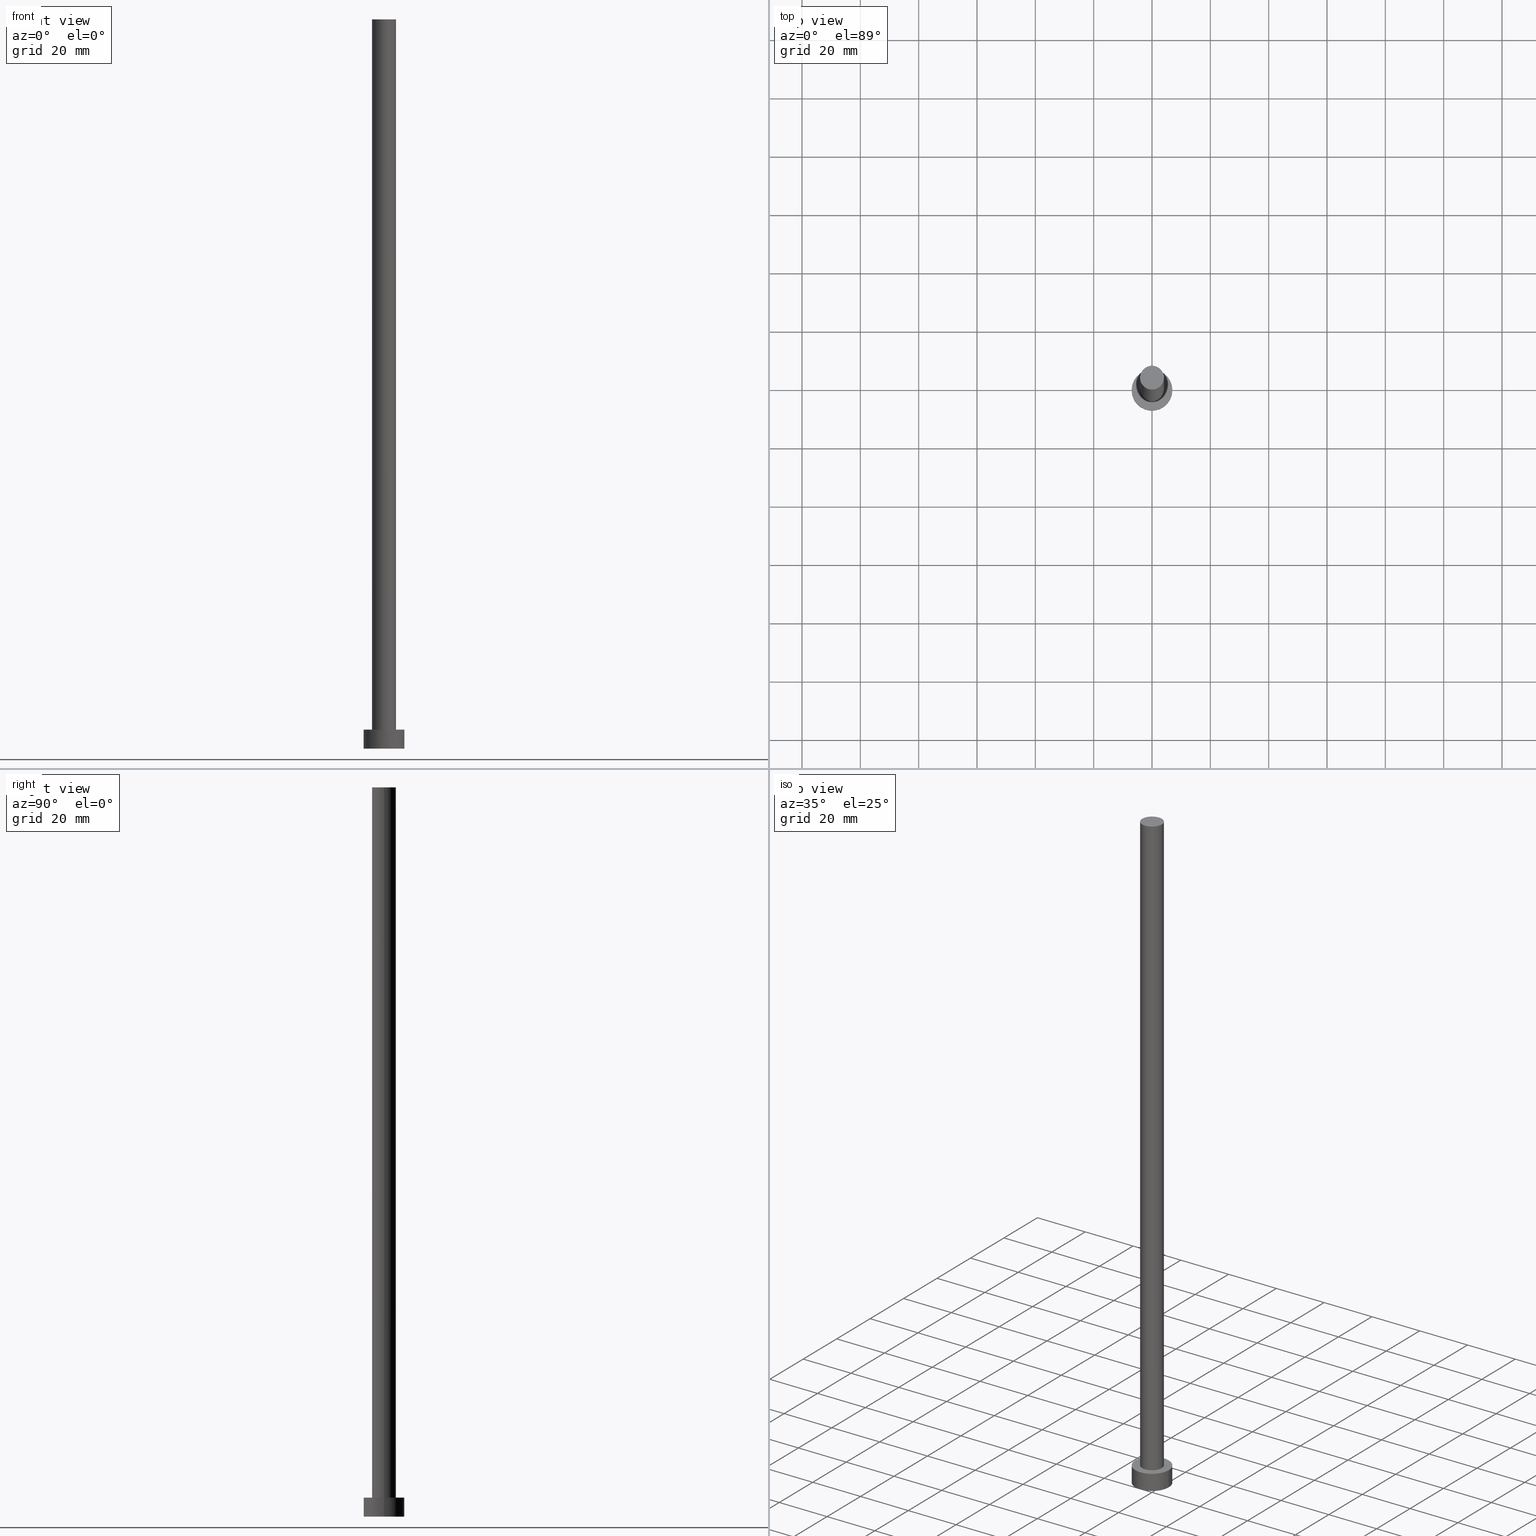
[diagram: canonical four-view strip — front | top / right | iso, engineering-drawing reading convention]
A machine part, canonical four-view strip (front | top / right | iso — engineering-drawing reading convention). The complete STEP part file that produces these views, byte-faithful:
ISO-10303-21;
HEADER;
FILE_DESCRIPTION (( 'STEP AP203' ),
    '1' );
FILE_NAME ('b596.STEP',
    '2023-02-13T14:16:57',
    ( '' ),
    ( '' ),
    'SwSTEP 2.0',
    'SolidWorks 2019',
    '' );
FILE_SCHEMA (( 'CONFIG_CONTROL_DESIGN' ));
ENDSEC;

DATA;
#1 = APPLICATION_PROTOCOL_DEFINITION ( 'international standard', 'config_control_design', 1994, #232 ) ;
#2 = COORDINATED_UNIVERSAL_TIME_OFFSET ( 1, 0, .AHEAD. ) ;
#3 = ORIENTED_EDGE ( 'NONE', *, *, #163, .F. ) ;
#4 = VERTEX_POINT ( 'NONE', #69 ) ;
#5 = VERTEX_POINT ( 'NONE', #145 ) ;
#6 = ORIENTED_EDGE ( 'NONE', *, *, #226, .F. ) ;
#7 = EDGE_CURVE ( 'NONE', #5, #182, #47, .T. ) ;
#8 = ORIENTED_EDGE ( 'NONE', *, *, #60, .T. ) ;
#9 = AXIS2_PLACEMENT_3D ( 'NONE', #213, #210, #98 ) ;
#10 = LOCAL_TIME ( 15, 16, 57.00000000000000000, #83 ) ;
#11 = CARTESIAN_POINT ( 'NONE',  ( 0.000000000000000000, 0.000000000000000000, 250.0000000000000000 ) ) ;
#12 = CYLINDRICAL_SURFACE ( 'NONE', #19, 7.000000000000000000 ) ;
#13 = CC_DESIGN_DATE_AND_TIME_ASSIGNMENT ( #110, #146, ( #198 ) ) ;
#14 = FACE_OUTER_BOUND ( 'NONE', #205, .T. ) ;
#15 = ADVANCED_FACE ( 'NONE', ( #117 ), #158, .T. ) ;
#16 = LINE ( 'NONE', #52, #71 ) ;
#17 = FACE_BOUND ( 'NONE', #126, .T. ) ;
#18 = MECHANICAL_CONTEXT ( 'NONE', #232, 'mechanical' ) ;
#19 = AXIS2_PLACEMENT_3D ( 'NONE', #228, #129, #157 ) ;
#20 = DIRECTION ( 'NONE',  ( 0.000000000000000000, 0.000000000000000000, 1.000000000000000000 ) ) ;
#21 =( GEOMETRIC_REPRESENTATION_CONTEXT ( 3 ) GLOBAL_UNCERTAINTY_ASSIGNED_CONTEXT ( ( #133 ) ) GLOBAL_UNIT_ASSIGNED_CONTEXT ( ( #44, #161, #22 ) ) REPRESENTATION_CONTEXT ( 'NONE', 'WORKASPACE' ) );
#22 =( NAMED_UNIT ( * ) SI_UNIT ( $, .STERADIAN. ) SOLID_ANGLE_UNIT ( ) );
#23 = PERSON_AND_ORGANIZATION_ROLE ( 'design_owner' ) ;
#24 = APPROVAL_STATUS ( 'not_yet_approved' ) ;
#25 = ADVANCED_FACE ( 'NONE', ( #17, #14 ), #36, .T. ) ;
#26 = PERSON_AND_ORGANIZATION ( #43, #66 ) ;
#27 = ORIENTED_EDGE ( 'NONE', *, *, #208, .T. ) ;
#28 = VERTEX_POINT ( 'NONE', #99 ) ;
#29 = EDGE_LOOP ( 'NONE', ( #242, #91, #147, #151 ) ) ;
#30 = APPROVAL_PERSON_ORGANIZATION ( #26, #96, #144 ) ;
#31 = CC_DESIGN_PERSON_AND_ORGANIZATION_ASSIGNMENT ( #209, #203, ( #198 ) ) ;
#32 = DIRECTION ( 'NONE',  ( 1.000000000000000000, 0.000000000000000000, -0.000000000000000000 ) ) ;
#33 = FACE_OUTER_BOUND ( 'NONE', #29, .T. ) ;
#34 = ADVANCED_BREP_SHAPE_REPRESENTATION ( 'b596', ( #142, #55 ), #21 ) ;
#35 = DIRECTION ( 'NONE',  ( 1.000000000000000000, 0.000000000000000000, 0.000000000000000000 ) ) ;
#36 = PLANE ( 'NONE',  #49 ) ;
#37 = AXIS2_PLACEMENT_3D ( 'NONE', #57, #212, #249 ) ;
#38 = CC_DESIGN_APPROVAL ( #202, ( #75 ) ) ;
#39 = DIRECTION ( 'NONE',  ( -0.000000000000000000, -0.000000000000000000, -1.000000000000000000 ) ) ;
#40 = ADVANCED_FACE ( 'NONE', ( #118 ), #58, .T. ) ;
#41 = CARTESIAN_POINT ( 'NONE',  ( 0.000000000000000000, 0.000000000000000000, 0.000000000000000000 ) ) ;
#42 = PERSON_AND_ORGANIZATION_ROLE ( 'design_supplier' ) ;
#43 = PERSON ( 'NEUR�EN�', 'NEUR�EN�', 'NEUR�EN�', ('NEUR�EN�'), ('NEUR�EN�'), ('NEUR�EN�') ) ;
#44 =( LENGTH_UNIT ( ) NAMED_UNIT ( * ) SI_UNIT ( .MILLI., .METRE. ) );
#45 = EDGE_CURVE ( 'NONE', #239, #127, #193, .T. ) ;
#46 = PERSON_AND_ORGANIZATION ( #43, #66 ) ;
#47 = CIRCLE ( 'NONE', #148, 7.000000000000000000 ) ;
#48 = ORIENTED_EDGE ( 'NONE', *, *, #65, .F. ) ;
#49 = AXIS2_PLACEMENT_3D ( 'NONE', #77, #244, #32 ) ;
#50 = APPROVAL_PERSON_ORGANIZATION ( #46, #202, #67 ) ;
#51 = PRODUCT_DEFINITION_SHAPE ( 'NONE', 'NONE',  #128 ) ;
#52 = CARTESIAN_POINT ( 'NONE',  ( 4.099999999999999645, 5.021051876504147385E-16, 250.0000000000000000 ) ) ;
#53 = APPROVAL ( #251, 'NEUR�EN�' ) ;
#54 = DIRECTION ( 'NONE',  ( 1.000000000000000000, 0.000000000000000000, 0.000000000000000000 ) ) ;
#55 = AXIS2_PLACEMENT_3D ( 'NONE', #236, #80, #199 ) ;
#56 = EDGE_CURVE ( 'NONE', #182, #5, #250, .T. ) ;
#57 = CARTESIAN_POINT ( 'NONE',  ( 0.000000000000000000, 0.000000000000000000, 0.000000000000000000 ) ) ;
#58 = PLANE ( 'NONE',  #113 ) ;
#59 = DIRECTION ( 'NONE',  ( -1.000000000000000000, 0.000000000000000000, 0.000000000000000000 ) ) ;
#60 = EDGE_CURVE ( 'NONE', #222, #28, #177, .T. ) ;
#61 = DIRECTION ( 'NONE',  ( 0.000000000000000000, 0.000000000000000000, 1.000000000000000000 ) ) ;
#62 = PERSON_AND_ORGANIZATION ( #43, #66 ) ;
#63 = PRODUCT_RELATED_PRODUCT_CATEGORY ( 'detail', '', ( #165 ) ) ;
#64 = DATE_AND_TIME ( #103, #185 ) ;
#65 = EDGE_CURVE ( 'NONE', #182, #127, #134, .T. ) ;
#66 = ORGANIZATION ( 'NEUR�EN�', 'NEUR�EN�', '' ) ;
#67 = APPROVAL_ROLE ( '' ) ;
#68 = COORDINATED_UNIVERSAL_TIME_OFFSET ( 1, 0, .AHEAD. ) ;
#69 = CARTESIAN_POINT ( 'NONE',  ( -4.099999999999999645, 0.000000000000000000, 6.500000000000000000 ) ) ;
#70 = ORIENTED_EDGE ( 'NONE', *, *, #56, .F. ) ;
#71 = VECTOR ( 'NONE', #152, 1000.000000000000000 ) ;
#72 = EDGE_LOOP ( 'NONE', ( #187, #109, #27, #3 ) ) ;
#73 = CARTESIAN_POINT ( 'NONE',  ( 0.000000000000000000, 0.000000000000000000, 6.500000000000000000 ) ) ;
#74 = DIRECTION ( 'NONE',  ( 0.000000000000000000, 0.000000000000000000, 1.000000000000000000 ) ) ;
#75 = PRODUCT_DEFINITION_FORMATION_WITH_SPECIFIED_SOURCE ( 'LIBOVOLN�', '', #165, .NOT_KNOWN. ) ;
#76 = PLANE ( 'NONE',  #9 ) ;
#77 = CARTESIAN_POINT ( 'NONE',  ( 0.000000000000000000, 0.000000000000000000, 6.500000000000000000 ) ) ;
#78 = DIRECTION ( 'NONE',  ( -0.000000000000000000, -0.000000000000000000, -1.000000000000000000 ) ) ;
#79 = DATE_AND_TIME ( #180, #10 ) ;
#80 = DIRECTION ( 'NONE',  ( 0.000000000000000000, 0.000000000000000000, 1.000000000000000000 ) ) ;
#81 = AXIS2_PLACEMENT_3D ( 'NONE', #119, #94, #172 ) ;
#82 = DIRECTION ( 'NONE',  ( 1.000000000000000000, 0.000000000000000000, 0.000000000000000000 ) ) ;
#83 = COORDINATED_UNIVERSAL_TIME_OFFSET ( 1, 0, .AHEAD. ) ;
#84 = EDGE_CURVE ( 'NONE', #5, #239, #214, .T. ) ;
#85 = EDGE_CURVE ( 'NONE', #28, #188, #16, .T. ) ;
#86 = ORIENTED_EDGE ( 'NONE', *, *, #243, .F. ) ;
#87 = CC_DESIGN_APPROVAL ( #96, ( #198 ) ) ;
#88 = SHAPE_DEFINITION_REPRESENTATION ( #51, #34 ) ;
#89 = ORIENTED_EDGE ( 'NONE', *, *, #84, .F. ) ;
#90 = ADVANCED_FACE ( 'NONE', ( #247 ), #76, .F. ) ;
#91 = ORIENTED_EDGE ( 'NONE', *, *, #60, .F. ) ;
#92 = AXIS2_PLACEMENT_3D ( 'NONE', #11, #95, #195 ) ;
#93 = DIRECTION ( 'NONE',  ( -1.000000000000000000, 0.000000000000000000, 0.000000000000000000 ) ) ;
#94 = DIRECTION ( 'NONE',  ( -0.000000000000000000, -0.000000000000000000, -1.000000000000000000 ) ) ;
#95 = DIRECTION ( 'NONE',  ( 0.000000000000000000, 0.000000000000000000, 1.000000000000000000 ) ) ;
#96 = APPROVAL ( #186, 'NEUR�EN�' ) ;
#97 = LOCAL_TIME ( 15, 16, 57.00000000000000000, #143 ) ;
#98 = DIRECTION ( 'NONE',  ( 1.000000000000000000, 0.000000000000000000, -0.000000000000000000 ) ) ;
#99 = CARTESIAN_POINT ( 'NONE',  ( 4.099999999999999645, 5.021051876504147385E-16, 250.0000000000000000 ) ) ;
#100 = CIRCLE ( 'NONE', #154, 4.099999999999999645 ) ;
#101 = ADVANCED_FACE ( 'NONE', ( #174 ), #12, .T. ) ;
#102 = PERSON_AND_ORGANIZATION ( #43, #66 ) ;
#103 = CALENDAR_DATE ( 2023, 13, 2 ) ;
#104 = LOCAL_TIME ( 15, 16, 57.00000000000000000, #68 ) ;
#105 = DATE_AND_TIME ( #123, #97 ) ;
#106 = EDGE_LOOP ( 'NONE', ( #89, #70, #164, #169 ) ) ;
#107 = CARTESIAN_POINT ( 'NONE',  ( 0.000000000000000000, 0.000000000000000000, 6.500000000000000000 ) ) ;
#108 = APPROVAL_DATE_TIME ( #167, #96 ) ;
#109 = ORIENTED_EDGE ( 'NONE', *, *, #85, .T. ) ;
#110 = DATE_AND_TIME ( #238, #104 ) ;
#111 = EDGE_LOOP ( 'NONE', ( #125, #168, #223, #48 ) ) ;
#112 = EDGE_LOOP ( 'NONE', ( #8, #170 ) ) ;
#113 = AXIS2_PLACEMENT_3D ( 'NONE', #194, #171, #245 ) ;
#114 = CYLINDRICAL_SURFACE ( 'NONE', #115, 7.000000000000000000 ) ;
#115 = AXIS2_PLACEMENT_3D ( 'NONE', #231, #78, #59 ) ;
#116 = CYLINDRICAL_SURFACE ( 'NONE', #81, 4.099999999999999645 ) ;
#117 = FACE_OUTER_BOUND ( 'NONE', #72, .T. ) ;
#118 = FACE_OUTER_BOUND ( 'NONE', #112, .T. ) ;
#119 = CARTESIAN_POINT ( 'NONE',  ( 0.000000000000000000, 0.000000000000000000, 250.0000000000000000 ) ) ;
#120 = CARTESIAN_POINT ( 'NONE',  ( 0.000000000000000000, 0.000000000000000000, 6.500000000000000000 ) ) ;
#121 = SECURITY_CLASSIFICATION_LEVEL ( 'unclassified' ) ;
#122 = DIRECTION ( 'NONE',  ( 0.000000000000000000, 0.000000000000000000, 1.000000000000000000 ) ) ;
#123 = CALENDAR_DATE ( 2023, 13, 2 ) ;
#124 = VECTOR ( 'NONE', #191, 1000.000000000000000 ) ;
#125 = ORIENTED_EDGE ( 'NONE', *, *, #7, .F. ) ;
#126 = EDGE_LOOP ( 'NONE', ( #86, #204 ) ) ;
#127 = VERTEX_POINT ( 'NONE', #175 ) ;
#128 = PRODUCT_DEFINITION ( 'NEZN�M�', '', #75, #196 ) ;
#129 = DIRECTION ( 'NONE',  ( -0.000000000000000000, -0.000000000000000000, -1.000000000000000000 ) ) ;
#130 = LINE ( 'NONE', #211, #189 ) ;
#131 = CC_DESIGN_DATE_AND_TIME_ASSIGNMENT ( #79, #255, ( #128 ) ) ;
#132 = CARTESIAN_POINT ( 'NONE',  ( -7.000000000000000000, 0.000000000000000000, 6.500000000000000000 ) ) ;
#133 = UNCERTAINTY_MEASURE_WITH_UNIT (LENGTH_MEASURE( 1.000000000000000082E-05 ), #44, 'distance_accuracy_value', 'NONE');
#134 = LINE ( 'NONE', #230, #254 ) ;
#135 = DIRECTION ( 'NONE',  ( 1.000000000000000000, 0.000000000000000000, 0.000000000000000000 ) ) ;
#136 = AXIS2_PLACEMENT_3D ( 'NONE', #41, #122, #82 ) ;
#137 = CARTESIAN_POINT ( 'NONE',  ( 0.000000000000000000, 0.000000000000000000, 6.500000000000000000 ) ) ;
#138 = PERSON_AND_ORGANIZATION_ROLE ( 'creator' ) ;
#139 = PERSON_AND_ORGANIZATION_ROLE ( 'creator' ) ;
#140 = APPROVAL_DATE_TIME ( #64, #53 ) ;
#141 = ADVANCED_FACE ( 'NONE', ( #153 ), #114, .T. ) ;
#142 = MANIFOLD_SOLID_BREP ( 'P�idat vysunut�m3', #184 ) ;
#143 = COORDINATED_UNIVERSAL_TIME_OFFSET ( 1, 0, .AHEAD. ) ;
#144 = APPROVAL_ROLE ( '' ) ;
#145 = CARTESIAN_POINT ( 'NONE',  ( 7.000000000000000000, 8.572527594031471218E-16, 6.500000000000000000 ) ) ;
#146 = DATE_TIME_ROLE ( 'classification_date' ) ;
#147 = ORIENTED_EDGE ( 'NONE', *, *, #163, .T. ) ;
#148 = AXIS2_PLACEMENT_3D ( 'NONE', #107, #183, #35 ) ;
#149 = CIRCLE ( 'NONE', #136, 7.000000000000000000 ) ;
#150 = EDGE_LOOP ( 'NONE', ( #6, #241 ) ) ;
#151 = ORIENTED_EDGE ( 'NONE', *, *, #243, .T. ) ;
#152 = DIRECTION ( 'NONE',  ( -0.000000000000000000, -0.000000000000000000, -1.000000000000000000 ) ) ;
#153 = FACE_OUTER_BOUND ( 'NONE', #111, .T. ) ;
#154 = AXIS2_PLACEMENT_3D ( 'NONE', #120, #20, #178 ) ;
#155 = EDGE_CURVE ( 'NONE', #28, #222, #233, .T. ) ;
#156 = DIRECTION ( 'NONE',  ( -0.000000000000000000, -0.000000000000000000, -1.000000000000000000 ) ) ;
#157 = DIRECTION ( 'NONE',  ( -1.000000000000000000, 0.000000000000000000, 0.000000000000000000 ) ) ;
#158 = CYLINDRICAL_SURFACE ( 'NONE', #206, 4.099999999999999645 ) ;
#159 = CC_DESIGN_PERSON_AND_ORGANIZATION_ASSIGNMENT ( #216, #42, ( #75 ) ) ;
#160 = APPROVAL_ROLE ( '' ) ;
#161 =( NAMED_UNIT ( * ) PLANE_ANGLE_UNIT ( ) SI_UNIT ( $, .RADIAN. ) );
#162 = CARTESIAN_POINT ( 'NONE',  ( 7.000000000000000000, 8.572527594031471218E-16, 0.000000000000000000 ) ) ;
#163 = EDGE_CURVE ( 'NONE', #222, #4, #130, .T. ) ;
#164 = ORIENTED_EDGE ( 'NONE', *, *, #65, .T. ) ;
#165 = PRODUCT ( 'b596', 'b596', '', ( #18 ) ) ;
#166 = CIRCLE ( 'NONE', #181, 4.099999999999999645 ) ;
#167 = DATE_AND_TIME ( #221, #237 ) ;
#168 = ORIENTED_EDGE ( 'NONE', *, *, #84, .T. ) ;
#169 = ORIENTED_EDGE ( 'NONE', *, *, #226, .T. ) ;
#170 = ORIENTED_EDGE ( 'NONE', *, *, #155, .T. ) ;
#171 = DIRECTION ( 'NONE',  ( 0.000000000000000000, 0.000000000000000000, 1.000000000000000000 ) ) ;
#172 = DIRECTION ( 'NONE',  ( -1.000000000000000000, 0.000000000000000000, 0.000000000000000000 ) ) ;
#173 = CARTESIAN_POINT ( 'NONE',  ( 7.000000000000000000, 8.572527594031471218E-16, 6.500000000000000000 ) ) ;
#174 = FACE_OUTER_BOUND ( 'NONE', #106, .T. ) ;
#175 = CARTESIAN_POINT ( 'NONE',  ( -7.000000000000000000, 0.000000000000000000, 0.000000000000000000 ) ) ;
#176 = ADVANCED_FACE ( 'NONE', ( #33 ), #116, .T. ) ;
#177 = CIRCLE ( 'NONE', #92, 4.099999999999999645 ) ;
#178 = DIRECTION ( 'NONE',  ( 1.000000000000000000, 0.000000000000000000, 0.000000000000000000 ) ) ;
#179 = PERSON_AND_ORGANIZATION ( #43, #66 ) ;
#180 = CALENDAR_DATE ( 2023, 13, 2 ) ;
#181 = AXIS2_PLACEMENT_3D ( 'NONE', #137, #61, #218 ) ;
#182 = VERTEX_POINT ( 'NONE', #132 ) ;
#183 = DIRECTION ( 'NONE',  ( 0.000000000000000000, 0.000000000000000000, 1.000000000000000000 ) ) ;
#184 = CLOSED_SHELL ( 'NONE', ( #15, #141, #101, #25, #90, #176, #40 ) ) ;
#185 = LOCAL_TIME ( 15, 16, 57.00000000000000000, #217 ) ;
#186 = APPROVAL_STATUS ( 'not_yet_approved' ) ;
#187 = ORIENTED_EDGE ( 'NONE', *, *, #155, .F. ) ;
#188 = VERTEX_POINT ( 'NONE', #253 ) ;
#189 = VECTOR ( 'NONE', #39, 1000.000000000000000 ) ;
#190 = DIRECTION ( 'NONE',  ( 0.000000000000000000, 0.000000000000000000, 1.000000000000000000 ) ) ;
#191 = DIRECTION ( 'NONE',  ( -0.000000000000000000, -0.000000000000000000, -1.000000000000000000 ) ) ;
#192 = DIRECTION ( 'NONE',  ( -0.000000000000000000, -0.000000000000000000, -1.000000000000000000 ) ) ;
#193 = CIRCLE ( 'NONE', #37, 7.000000000000000000 ) ;
#194 = CARTESIAN_POINT ( 'NONE',  ( 0.000000000000000000, 0.000000000000000000, 250.0000000000000000 ) ) ;
#195 = DIRECTION ( 'NONE',  ( 1.000000000000000000, 0.000000000000000000, 0.000000000000000000 ) ) ;
#196 = DESIGN_CONTEXT ( 'detailed design', #235, 'design' ) ;
#197 = CARTESIAN_POINT ( 'NONE',  ( -4.099999999999999645, 0.000000000000000000, 250.0000000000000000 ) ) ;
#198 = SECURITY_CLASSIFICATION ( '', '', #121 ) ;
#199 = DIRECTION ( 'NONE',  ( 1.000000000000000000, 0.000000000000000000, 0.000000000000000000 ) ) ;
#200 = PERSON_AND_ORGANIZATION ( #43, #66 ) ;
#201 = CC_DESIGN_SECURITY_CLASSIFICATION ( #198, ( #75 ) ) ;
#202 = APPROVAL ( #24, 'NEUR�EN�' ) ;
#203 = PERSON_AND_ORGANIZATION_ROLE ( 'classification_officer' ) ;
#204 = ORIENTED_EDGE ( 'NONE', *, *, #208, .F. ) ;
#205 = EDGE_LOOP ( 'NONE', ( #225, #227 ) ) ;
#206 = AXIS2_PLACEMENT_3D ( 'NONE', #248, #192, #93 ) ;
#207 = AXIS2_PLACEMENT_3D ( 'NONE', #229, #190, #135 ) ;
#208 = EDGE_CURVE ( 'NONE', #188, #4, #166, .T. ) ;
#209 = PERSON_AND_ORGANIZATION ( #43, #66 ) ;
#210 = DIRECTION ( 'NONE',  ( 0.000000000000000000, 0.000000000000000000, 1.000000000000000000 ) ) ;
#211 = CARTESIAN_POINT ( 'NONE',  ( -4.099999999999999645, 0.000000000000000000, 250.0000000000000000 ) ) ;
#212 = DIRECTION ( 'NONE',  ( 0.000000000000000000, 0.000000000000000000, 1.000000000000000000 ) ) ;
#213 = CARTESIAN_POINT ( 'NONE',  ( 0.000000000000000000, 0.000000000000000000, 0.000000000000000000 ) ) ;
#214 = LINE ( 'NONE', #173, #124 ) ;
#215 = APPROVAL_PERSON_ORGANIZATION ( #179, #53, #160 ) ;
#216 = PERSON_AND_ORGANIZATION ( #43, #66 ) ;
#217 = COORDINATED_UNIVERSAL_TIME_OFFSET ( 1, 0, .AHEAD. ) ;
#218 = DIRECTION ( 'NONE',  ( 1.000000000000000000, 0.000000000000000000, 0.000000000000000000 ) ) ;
#219 = APPLICATION_PROTOCOL_DEFINITION ( 'international standard', 'config_control_design', 1994, #235 ) ;
#220 = CC_DESIGN_PERSON_AND_ORGANIZATION_ASSIGNMENT ( #62, #138, ( #75 ) ) ;
#221 = CALENDAR_DATE ( 2023, 13, 2 ) ;
#222 = VERTEX_POINT ( 'NONE', #197 ) ;
#223 = ORIENTED_EDGE ( 'NONE', *, *, #45, .T. ) ;
#224 = AXIS2_PLACEMENT_3D ( 'NONE', #73, #74, #54 ) ;
#225 = ORIENTED_EDGE ( 'NONE', *, *, #56, .T. ) ;
#226 = EDGE_CURVE ( 'NONE', #127, #239, #149, .T. ) ;
#227 = ORIENTED_EDGE ( 'NONE', *, *, #7, .T. ) ;
#228 = CARTESIAN_POINT ( 'NONE',  ( 0.000000000000000000, 0.000000000000000000, 6.500000000000000000 ) ) ;
#229 = CARTESIAN_POINT ( 'NONE',  ( 0.000000000000000000, 0.000000000000000000, 250.0000000000000000 ) ) ;
#230 = CARTESIAN_POINT ( 'NONE',  ( -7.000000000000000000, 0.000000000000000000, 6.500000000000000000 ) ) ;
#231 = CARTESIAN_POINT ( 'NONE',  ( 0.000000000000000000, 0.000000000000000000, 6.500000000000000000 ) ) ;
#232 = APPLICATION_CONTEXT ( 'configuration controlled 3d designs of mechanical parts and assemblies' ) ;
#233 = CIRCLE ( 'NONE', #207, 4.099999999999999645 ) ;
#234 = APPROVAL_DATE_TIME ( #105, #202 ) ;
#235 = APPLICATION_CONTEXT ( 'configuration controlled 3d designs of mechanical parts and assemblies' ) ;
#236 = CARTESIAN_POINT ( 'NONE',  ( 0.000000000000000000, 0.000000000000000000, 0.000000000000000000 ) ) ;
#237 = LOCAL_TIME ( 15, 16, 57.00000000000000000, #2 ) ;
#238 = CALENDAR_DATE ( 2023, 13, 2 ) ;
#239 = VERTEX_POINT ( 'NONE', #162 ) ;
#240 = CC_DESIGN_PERSON_AND_ORGANIZATION_ASSIGNMENT ( #102, #23, ( #165 ) ) ;
#241 = ORIENTED_EDGE ( 'NONE', *, *, #45, .F. ) ;
#242 = ORIENTED_EDGE ( 'NONE', *, *, #85, .F. ) ;
#243 = EDGE_CURVE ( 'NONE', #4, #188, #100, .T. ) ;
#244 = DIRECTION ( 'NONE',  ( 0.000000000000000000, 0.000000000000000000, 1.000000000000000000 ) ) ;
#245 = DIRECTION ( 'NONE',  ( 1.000000000000000000, 0.000000000000000000, -0.000000000000000000 ) ) ;
#246 = CC_DESIGN_PERSON_AND_ORGANIZATION_ASSIGNMENT ( #200, #139, ( #128 ) ) ;
#247 = FACE_OUTER_BOUND ( 'NONE', #150, .T. ) ;
#248 = CARTESIAN_POINT ( 'NONE',  ( 0.000000000000000000, 0.000000000000000000, 250.0000000000000000 ) ) ;
#249 = DIRECTION ( 'NONE',  ( 1.000000000000000000, 0.000000000000000000, 0.000000000000000000 ) ) ;
#250 = CIRCLE ( 'NONE', #224, 7.000000000000000000 ) ;
#251 = APPROVAL_STATUS ( 'not_yet_approved' ) ;
#252 = CC_DESIGN_APPROVAL ( #53, ( #128 ) ) ;
#253 = CARTESIAN_POINT ( 'NONE',  ( 4.099999999999999645, 5.021051876504147385E-16, 6.500000000000000000 ) ) ;
#254 = VECTOR ( 'NONE', #156, 1000.000000000000000 ) ;
#255 = DATE_TIME_ROLE ( 'creation_date' ) ;
ENDSEC;
END-ISO-10303-21;
